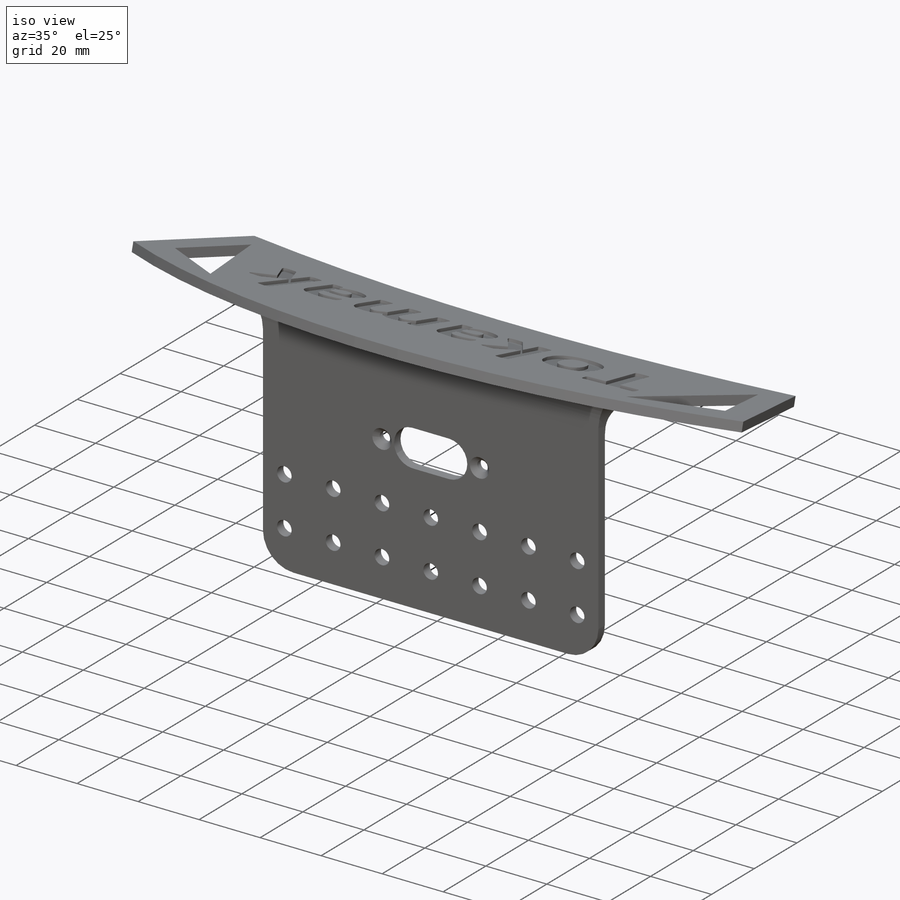
[diagram: iso view]
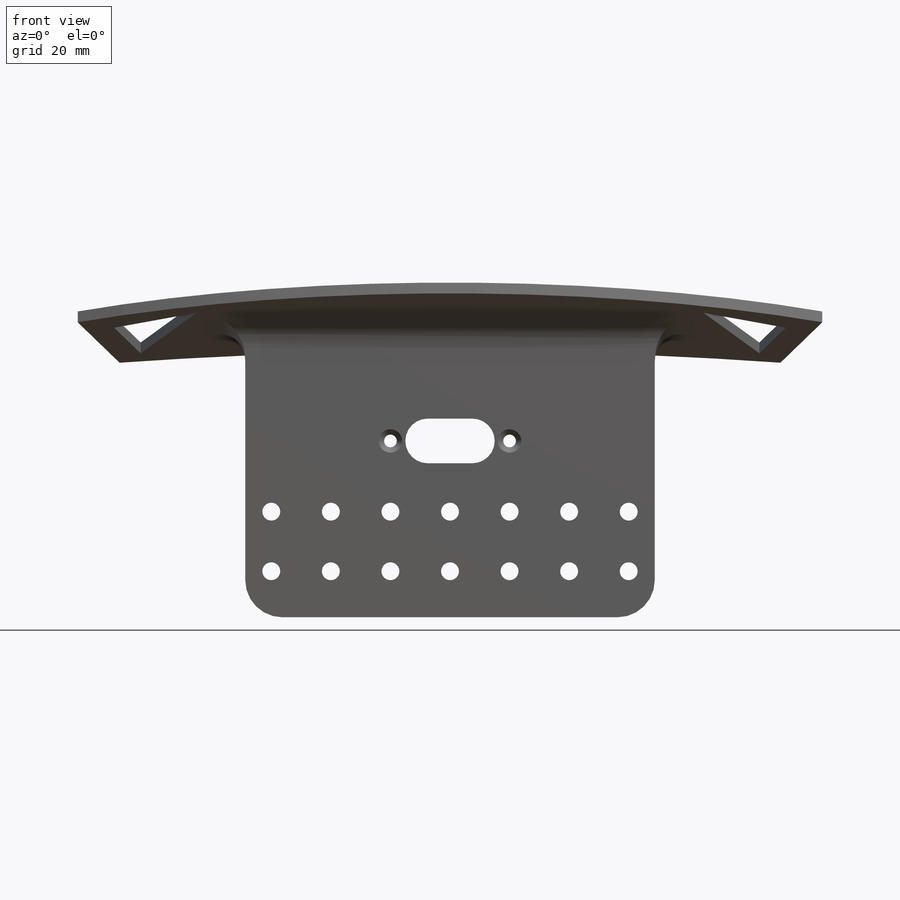
[diagram: front view]
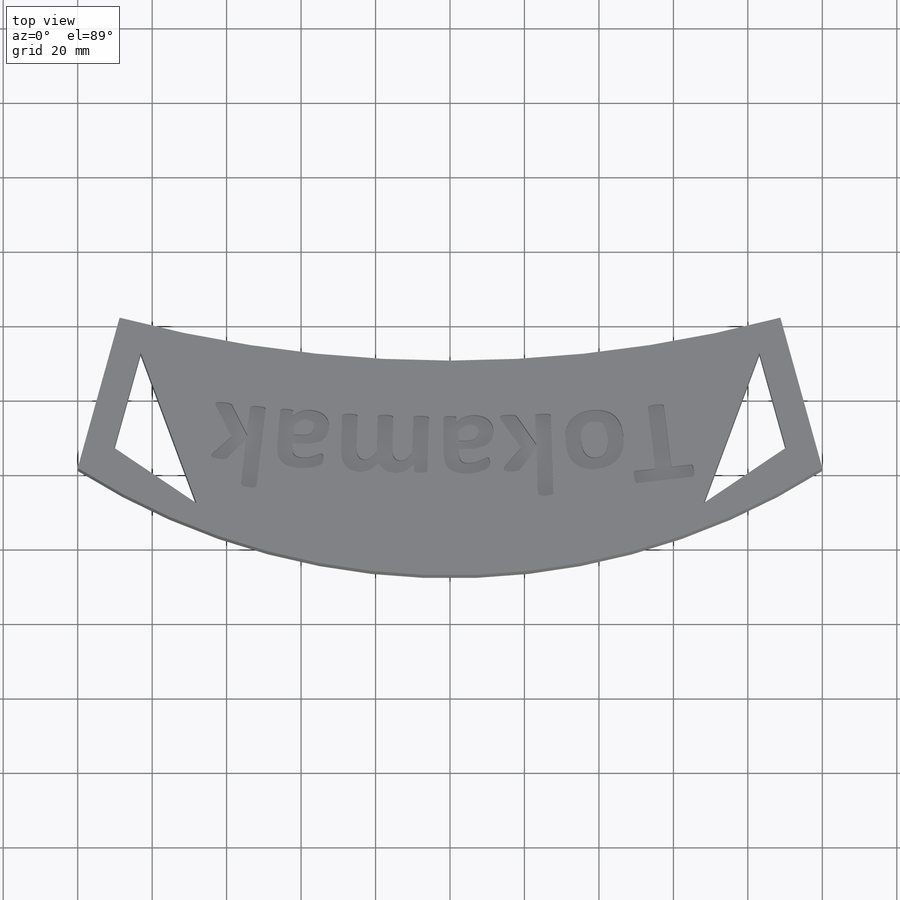
[diagram: top view]
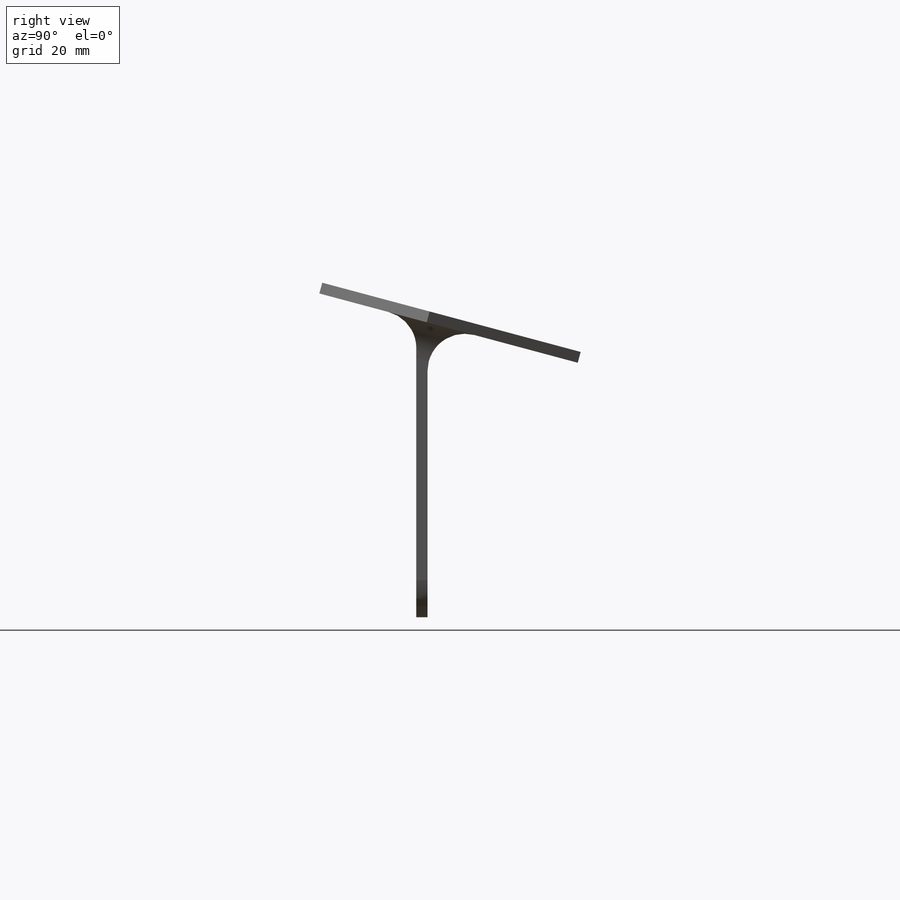
[diagram: right view]
SOLIDWORKS PART (.sldprt)
format: sldprt  version: not decoded by parser v0  size: 553,984 bytes
history: native  units: mm
features: sketch x8, cut_extrude x4, extrude x2, fillet x2, material x1, plane x1, mirror x1, hole x1 (+13 scaffold rows collapsed)
feature tree (33):
  scaffold x13  (default folders/planes/origin — collapsed)
  material  "Material <not specified>"
  sketch  "Sketch2"  dims[D1=110.0mm D2=80.0mm]
  extrude  "Boss-Extrude1"  Depth=3mm
  plane  "Plane1"
  sketch  "Sketch3"  dims[D1=30.0deg D2=60.0mm D3=30.0mm D4=12.0mm D5=200.0mm]
  extrude  "Boss-Extrude2"  Depth=3mm
  fillet  "Fillet1"  Radius=10mm
  fillet  "Fillet2"  Radius=10mm
  sketch  "Sketch4"
  cut_extrude  "Cut-Extrude1"  [1 undecoded]
  sketch  "Sketch7"  dims[c1.D1=8.0mm c1.D2=~27.028112mm c2.D2=70.0deg c2.D3=8.0mm c2.D4=8.0mm c2.D5=27.0mm]
  cut_extrude  "Cut-Extrude2"  [1 undecoded]
  mirror  "Mirror1"
  sketch  "Sketch8"  dims[D2=6.0mm D4=3.2mm D1=12.0mm D3=7.0mm D5=32.0mm]
  cut_extrude  "Cut-Extrude3"  [1 undecoded]
  sketch  "Sketch9"  dims[c1.D3=~840.801884mm c1.D1=10.0mm c1.D2=150.0mm c2.D3=6.0mm]
  cut_extrude  "Cut-Extrude11"  Depth=1mm
  hole  "CSK for M3 Countersunk Flat Head Screw1"  Diameter=3.4mm Depth=44.14438mm
  sketch  "Sketch11"  dims[D1=32.0mm]
  sketch  "Sketch10"  dims[hole-wizard template sketch: 55 standard entries collapsed; hole parameters kept: c17.Thru Hole Depth=~44.14438mm c17.Near C'Sink Dia.=6.3mm c17.D4=~3.666174mm c17.Near C'Sink Angle=90.0deg]
decode coverage: 13 of 18 modeling features carry decoded parameters
note: ~ marks probable driven/reference dimensions
note: 3 parameter values undecoded
summary: no parameter record found for 3 features
note: suppression state not decoded; provenance and decode notes live in map.json
